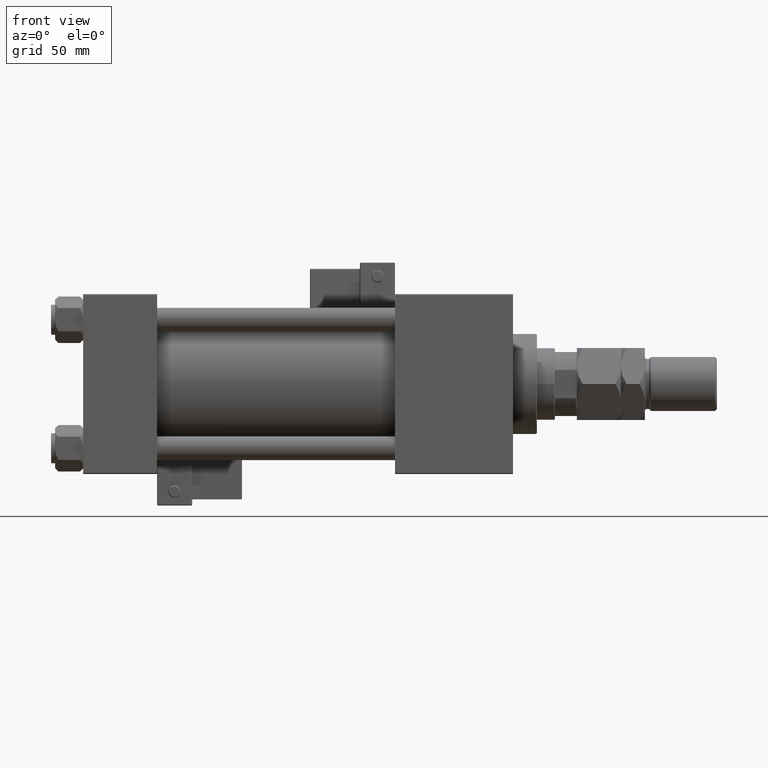
[diagram: clean part render]
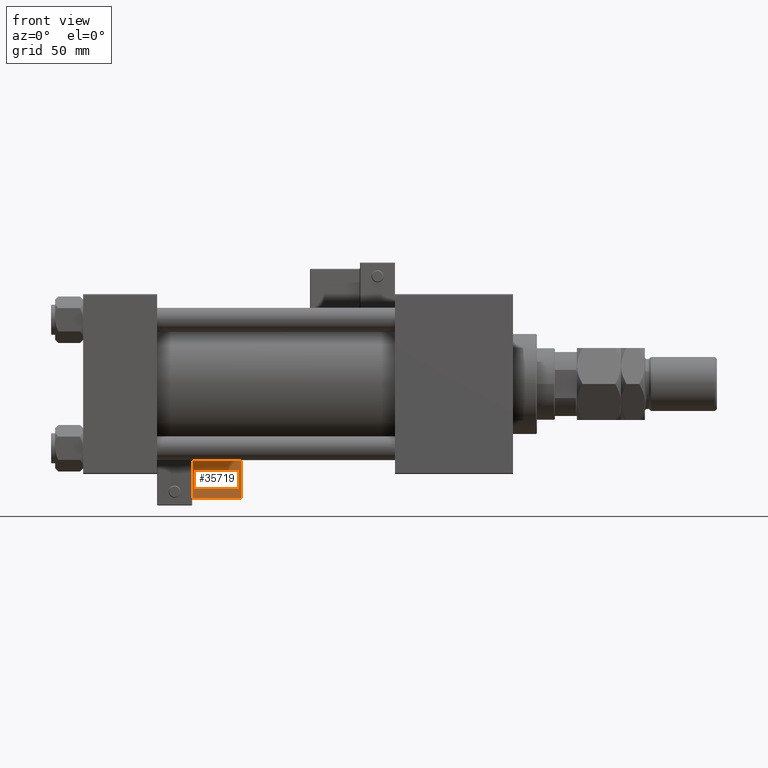
[diagram: same view with one face highlighted and labeled with its STEP entity id]
A machine part, front view. The second image highlights one B-rep face of the part: STEP entity #35719.
In plain terms, the highlighted planar face has unit normal (0, 0.9994, 0.0353).
Its self-contained STEP definition (entity closure, byte-faithful):
#1085 = CARTESIAN_POINT ( 'NONE',  ( 33.75000000000000000, -36.25000000000000000, 21.50000000000000000 ) ) ;
#1170 = AXIS2_PLACEMENT_3D ( 'NONE', #53907, #45179, #11852 ) ;
#2553 = VERTEX_POINT ( 'NONE', #38932 ) ;
#4579 = CARTESIAN_POINT ( 'NONE',  ( 9.250000000000003553, -36.25000000000000000, 21.50000000000000000 ) ) ;
#5272 = EDGE_CURVE ( 'NONE', #34225, #50159, #5914, .T. ) ;
#5349 = ORIENTED_EDGE ( 'NONE', *, *, #47150, .T. ) ;
#5887 = DIRECTION ( 'NONE',  ( 1.334402673828313339E-16, 0.000000000000000000, -1.000000000000000000 ) ) ;
#5914 = LINE ( 'NONE', #26452, #26021 ) ;
#6129 = EDGE_CURVE ( 'NONE', #2553, #44568, #9852, .T. ) ;
#6466 = DIRECTION ( 'NONE',  ( 1.000000000000000000, -0.000000000000000000, 1.334402673828313339E-16 ) ) ;
#9472 = VECTOR ( 'NONE', #26526, 1000.000000000000000 ) ;
#9477 = DIRECTION ( 'NONE',  ( -1.734723475976807587E-16, -0.000000000000000000, 1.000000000000000000 ) ) ;
#9852 = LINE ( 'NONE', #1085, #9472 ) ;
#10008 = LINE ( 'NONE', #25882, #32192 ) ;
#10482 = VECTOR ( 'NONE', #5887, 1000.000000000000000 ) ;
#11852 = DIRECTION ( 'NONE',  ( 0.000000000000000000, -0.000000000000000000, 1.000000000000000000 ) ) ;
#16094 = CARTESIAN_POINT ( 'NONE',  ( 9.250000000000005329, -36.25000000000000000, 2.500000000000004885 ) ) ;
#22887 = CARTESIAN_POINT ( 'NONE',  ( 33.24999999999999289, -36.25000000000000000, 2.500000000000008438 ) ) ;
#24170 = PLANE ( 'NONE',  #1170 ) ;
#25882 = CARTESIAN_POINT ( 'NONE',  ( 33.24999999999999289, -36.25000000000000000, 22.00000000000000355 ) ) ;
#26021 = VECTOR ( 'NONE', #6466, 1000.000000000000000 ) ;
#26452 = CARTESIAN_POINT ( 'NONE',  ( 33.75000000000000000, -36.25000000000000000, 2.500000000000009326 ) ) ;
#26526 = DIRECTION ( 'NONE',  ( -1.000000000000000000, 0.000000000000000000, -1.334402673828313339E-16 ) ) ;
#31606 = LINE ( 'NONE', #43335, #10482 ) ;
#32192 = VECTOR ( 'NONE', #9477, 1000.000000000000000 ) ;
#34225 = VERTEX_POINT ( 'NONE', #16094 ) ;
#35719 = ADVANCED_FACE ( 'NONE', ( #53647 ), #24170, .F. ) ;
#38655 = EDGE_LOOP ( 'NONE', ( #5349, #46357, #42564, #48588 ) ) ;
#38932 = CARTESIAN_POINT ( 'NONE',  ( 33.24999999999999289, -36.25000000000000000, 21.50000000000000000 ) ) ;
#39885 = EDGE_CURVE ( 'NONE', #50159, #2553, #10008, .T. ) ;
#42564 = ORIENTED_EDGE ( 'NONE', *, *, #39885, .T. ) ;
#43335 = CARTESIAN_POINT ( 'NONE',  ( 9.250000000000005329, -36.25000000000000000, 2.000000000000005329 ) ) ;
#44568 = VERTEX_POINT ( 'NONE', #4579 ) ;
#45179 = DIRECTION ( 'NONE',  ( -0.000000000000000000, 1.000000000000000000, 0.000000000000000000 ) ) ;
#46357 = ORIENTED_EDGE ( 'NONE', *, *, #5272, .T. ) ;
#47150 = EDGE_CURVE ( 'NONE', #44568, #34225, #31606, .T. ) ;
#48588 = ORIENTED_EDGE ( 'NONE', *, *, #6129, .T. ) ;
#50159 = VERTEX_POINT ( 'NONE', #22887 ) ;
#53647 = FACE_OUTER_BOUND ( 'NONE', #38655, .T. ) ;
#53907 = CARTESIAN_POINT ( 'NONE',  ( 33.75000000000000000, -36.25000000000000000, 22.00000000000000355 ) ) ;